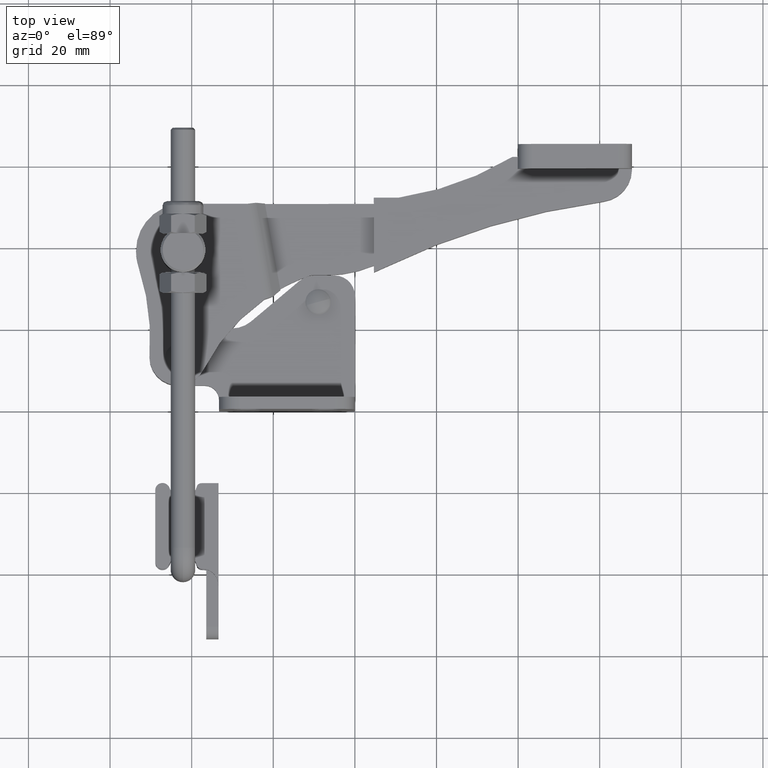
[diagram: clean part render]
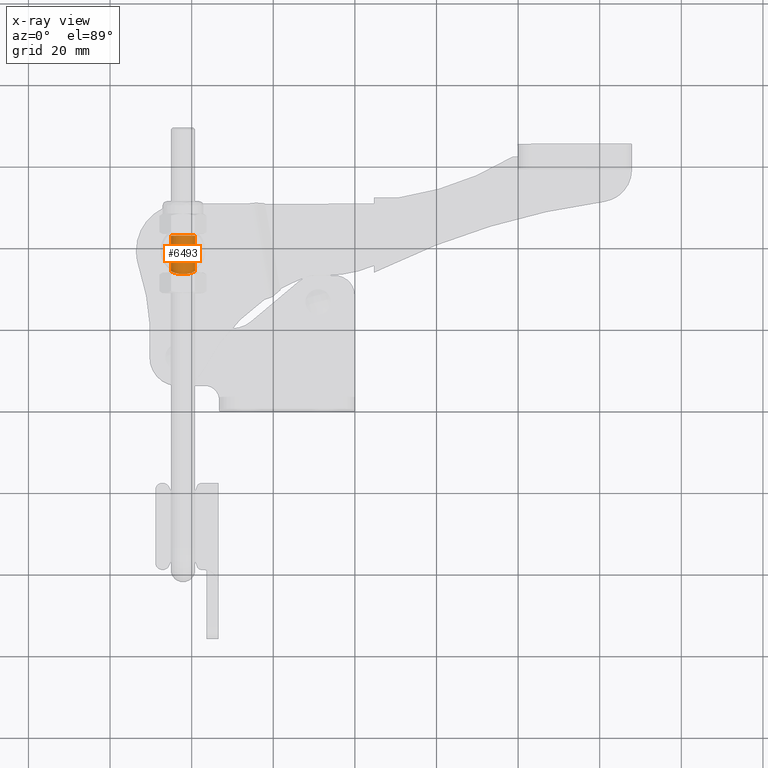
[diagram: x-ray — body ghosted, one internal face saturated and labeled with its STEP entity id]
A machine part, top view, then the same camera in x-ray: the body is ghosted and one INTERNAL B-rep face — a face not visible from any outside direction — is saturated and labeled: STEP entity #6493.
In plain terms, the highlighted cylindrical surface (edge-blend (fillet) strip) has radius 3 mm, axis along (-0, 1, -0).
Its self-contained STEP definition (entity closure, byte-faithful):
#140 = CARTESIAN_POINT ( 'NONE',  ( -39.13817590730900500, 5.998999999999990800, -13.99999999999999600 ) ) ;
#531 = CARTESIAN_POINT ( 'NONE',  ( -45.13817590730901900, 34.39251771605601200, -13.79784159717668100 ) ) ;
#539 = CARTESIAN_POINT ( 'NONE',  ( -45.13817590730900500, 5.998999999999990800, -13.99999999999999600 ) ) ;
#621 = EDGE_CURVE ( 'NONE', #8202, #7765, #6557, .T. ) ;
#707 = CARTESIAN_POINT ( 'NONE',  ( -44.39849580594993500, 33.98606106068957900, -12.01812625798247500 ) ) ;
#1132 = CARTESIAN_POINT ( 'NONE',  ( -42.33757463680940000, 33.50228994470245400, -10.99999999999999600 ) ) ;
#1347 = CARTESIAN_POINT ( 'NONE',  ( -43.11935613936135800, 33.58728944052952400, -11.15806756547035400 ) ) ;
#1482 = CARTESIAN_POINT ( 'NONE',  ( -41.93845525763266100, 33.50228994470245400, -10.99999999999999300 ) ) ;
#1651 = CARTESIAN_POINT ( 'NONE',  ( -39.44925083368600100, 34.20359454769310800, -12.65522587242275100 ) ) ;
#1820 = CARTESIAN_POINT ( 'NONE',  ( -41.15643009102976200, 33.58748945116245500, -11.15847510558426400 ) ) ;
#2074 = CARTESIAN_POINT ( 'NONE',  ( -39.54160315386094700, 34.15229480410284400, -12.48502394615730000 ) ) ;
#2105 = CARTESIAN_POINT ( 'NONE',  ( -42.93062434355506700, 33.55614408728590100, -11.09972052542770300 ) ) ;
#2130 = EDGE_CURVE ( 'NONE', #8202, #2799, #3539, .T. ) ;
#2327 = CARTESIAN_POINT ( 'NONE',  ( -44.82882616211691800, 34.20458592163641500, -12.65908156999151800 ) ) ;
#2370 = ORIENTED_EDGE ( 'NONE', *, *, #2130, .T. ) ;
#2381 = VECTOR ( 'NONE', #3463, 1000.000000000000000 ) ;
#2470 = AXIS2_PLACEMENT_3D ( 'NONE', #8046, #3052, #8875 ) ;
#2799 = VERTEX_POINT ( 'NONE', #7814 ) ;
#2906 = CARTESIAN_POINT ( 'NONE',  ( -39.23784068091367800, 34.32893512485107100, -13.20786591398484500 ) ) ;
#3052 = DIRECTION ( 'NONE',  ( -1.387778780781445700E-016, 1.000000000000000000, -9.625066968735699800E-019 ) ) ;
#3096 = CARTESIAN_POINT ( 'NONE',  ( -45.13817590730900500, 34.39251771605600500, -13.99999999999999600 ) ) ;
#3245 = EDGE_CURVE ( 'NONE', #2799, #8163, #5426, .T. ) ;
#3404 = CARTESIAN_POINT ( 'NONE',  ( -41.74013213344975500, 33.51313741995598900, -11.01974433651127000 ) ) ;
#3463 = DIRECTION ( 'NONE',  ( -1.387778780781445700E-016, 1.000000000000000000, -9.625066968735701700E-019 ) ) ;
#3539 = B_SPLINE_CURVE_WITH_KNOTS ( 'NONE', 3,
 ( #8511, #5227, #9019, #2906, #7292, #1651, #2074, #9908, #5719, #8729, #8515, #8099, #8267, #1820, #7636, #3404, #1482, #9541 ),
 .UNSPECIFIED., .F., .F.,
 ( 4, 2, 2, 2, 2, 2, 2, 2, 4 ),
 ( 0.009577110126287575700, 0.01017468687120268700, 0.01077226361611779800, 0.01136984036103290900, 0.01196741710594801900, 0.01256499385086313000, 0.01316257059577824100, 0.01376014734069335200, 0.01435772408560846400 ),
 .UNSPECIFIED. ) ;
#3548 = DIRECTION ( 'NONE',  ( -1.387778780781445700E-016, 1.000000000000000000, -9.625066968735701700E-019 ) ) ;
#3735 = ORIENTED_EDGE ( 'NONE', *, *, #621, .F. ) ;
#3952 = CARTESIAN_POINT ( 'NONE',  ( -43.65609144161550900, 33.71321909918490400, -11.40513248100127300 ) ) ;
#4472 = ORIENTED_EDGE ( 'NONE', *, *, #7768, .T. ) ;
#4768 = ORIENTED_EDGE ( 'NONE', *, *, #3245, .T. ) ;
#4785 = CARTESIAN_POINT ( 'NONE',  ( -44.73554089644515800, 34.15272272582412700, -12.48639473584802900 ) ) ;
#5223 = CARTESIAN_POINT ( 'NONE',  ( -42.13817590730900500, 5.998999999999990800, -13.99999999999999600 ) ) ;
#5227 = CARTESIAN_POINT ( 'NONE',  ( -39.13817590730901200, 34.39251771605601200, -13.80034181787097600 ) ) ;
#5279 = CARTESIAN_POINT ( 'NONE',  ( -45.03749146286278900, 34.32829671301969700, -13.20375206629910500 ) ) ;
#5417 = AXIS2_PLACEMENT_3D ( 'NONE', #5223, #3548, #7687 ) ;
#5426 = B_SPLINE_CURVE_WITH_KNOTS ( 'NONE', 3,
 ( #8961, #1132, #7612, #2105, #1347, #6442, #3952, #10425, #9842, #707, #9989, #4785, #2327, #10744, #5279, #7643, #531, #3096 ),
 .UNSPECIFIED., .F., .F.,
 ( 4, 2, 2, 2, 2, 2, 2, 2, 4 ),
 ( 0.01435772408560846400, 0.01495433762511050300, 0.01555095116461254300, 0.01614756470411458200, 0.01674417824361662500, 0.01734079178311866500, 0.01793740532262070400, 0.01853401886212274400, 0.01913063240162478400 ),
 .UNSPECIFIED. ) ;
#5508 = CYLINDRICAL_SURFACE ( 'NONE', #5417, 3.000000000000002700 ) ;
#5660 = VECTOR ( 'NONE', #10491, 1000.000000000000000 ) ;
#5719 = CARTESIAN_POINT ( 'NONE',  ( -39.88144731457939000, 33.98444471966938400, -12.01406558615240300 ) ) ;
#6345 = CARTESIAN_POINT ( 'NONE',  ( -39.13817590730901200, 43.00228994470244700, -13.99999999999999600 ) ) ;
#6442 = CARTESIAN_POINT ( 'NONE',  ( -43.48476130323516000, 33.66640643028409100, -11.31187753595929400 ) ) ;
#6493 = ADVANCED_FACE ( 'NONE', ( #7961 ), #5508, .F. ) ;
#6557 = LINE ( 'NONE', #140, #2381 ) ;
#6776 = CARTESIAN_POINT ( 'NONE',  ( -45.13817590730901200, 43.00228994470244700, -13.99999999999999600 ) ) ;
#7292 = CARTESIAN_POINT ( 'NONE',  ( -39.29660741515275600, 34.29237656235431300, -13.01805091265152100 ) ) ;
#7350 = ORIENTED_EDGE ( 'NONE', *, *, #8490, .T. ) ;
#7612 = CARTESIAN_POINT ( 'NONE',  ( -42.54062343569725600, 33.51352731444976700, -11.02046454264622700 ) ) ;
#7636 = CARTESIAN_POINT ( 'NONE',  ( -41.34630384628184200, 33.55599093300623500, -11.09943086539393800 ) ) ;
#7643 = CARTESIAN_POINT ( 'NONE',  ( -45.11755823490604200, 34.37892273383818100, -13.59586832764360400 ) ) ;
#7687 = DIRECTION ( 'NONE',  ( -1.000000000000000000, 0.0000000000000000000, 0.0000000000000000000 ) ) ;
#7765 = VERTEX_POINT ( 'NONE', #6345 ) ;
#7768 = EDGE_CURVE ( 'NONE', #10635, #7765, #10592, .T. ) ;
#7814 = CARTESIAN_POINT ( 'NONE',  ( -42.13817590730901200, 33.50228994470245400, -10.99999999999999600 ) ) ;
#7961 = FACE_OUTER_BOUND ( 'NONE', #9775, .T. ) ;
#8046 = CARTESIAN_POINT ( 'NONE',  ( -42.13817590730901200, 43.00228994470244700, -13.99999999999999600 ) ) ;
#8099 = CARTESIAN_POINT ( 'NONE',  ( -40.62437964556119100, 33.71198807236154900, -11.40259923079929600 ) ) ;
#8163 = VERTEX_POINT ( 'NONE', #8460 ) ;
#8202 = VERTEX_POINT ( 'NONE', #8499 ) ;
#8267 = CARTESIAN_POINT ( 'NONE',  ( -40.79655582084235700, 33.66525474000199100, -11.30962007943945100 ) ) ;
#8460 = CARTESIAN_POINT ( 'NONE',  ( -45.13817590730900500, 34.39251771605600500, -13.99999999999999600 ) ) ;
#8490 = EDGE_CURVE ( 'NONE', #8163, #10635, #9533, .T. ) ;
#8499 = CARTESIAN_POINT ( 'NONE',  ( -39.13817590730901200, 34.39251771605601200, -13.99999999999999600 ) ) ;
#8511 = CARTESIAN_POINT ( 'NONE',  ( -39.13817590730901200, 34.39251771605601200, -13.99999999999999600 ) ) ;
#8515 = CARTESIAN_POINT ( 'NONE',  ( -40.30069420659942400, 33.81552466929883800, -11.62056080609662900 ) ) ;
#8729 = CARTESIAN_POINT ( 'NONE',  ( -40.15261328969094700, 33.87109751650913800, -11.74294427874157900 ) ) ;
#8875 = DIRECTION ( 'NONE',  ( -1.000000000000000000, 0.0000000000000000000, 0.0000000000000000000 ) ) ;
#8961 = CARTESIAN_POINT ( 'NONE',  ( -42.13817590730901200, 33.50228994470245400, -10.99999999999999600 ) ) ;
#9019 = CARTESIAN_POINT ( 'NONE',  ( -39.15874414247421200, 34.37896040243629200, -13.59700224021710600 ) ) ;
#9533 = LINE ( 'NONE', #539, #5660 ) ;
#9541 = CARTESIAN_POINT ( 'NONE',  ( -42.13817590730901200, 33.50228994470245400, -10.99999999999999600 ) ) ;
#9775 = EDGE_LOOP ( 'NONE', ( #3735, #2370, #4768, #7350, #4472 ) ) ;
#9842 = CARTESIAN_POINT ( 'NONE',  ( -44.12738807570855200, 33.87251088414940600, -11.74613564680970700 ) ) ;
#9908 = CARTESIAN_POINT ( 'NONE',  ( -39.75742633002504800, 34.04278650402909500, -12.16441454627470400 ) ) ;
#9989 = CARTESIAN_POINT ( 'NONE',  ( -44.52000278671741300, 34.04330740654635400, -12.16582266424798100 ) ) ;
#10425 = CARTESIAN_POINT ( 'NONE',  ( -43.97671305307962800, 33.81595027767191700, -11.62151599247224700 ) ) ;
#10491 = DIRECTION ( 'NONE',  ( -1.387778780781445700E-016, 1.000000000000000000, -9.625066968735701700E-019 ) ) ;
#10592 = CIRCLE ( 'NONE', #2470, 3.000000000000002700 ) ;
#10635 = VERTEX_POINT ( 'NONE', #6776 ) ;
#10744 = CARTESIAN_POINT ( 'NONE',  ( -44.97916181363559200, 34.29204984820039200, -13.01691296942334800 ) ) ;